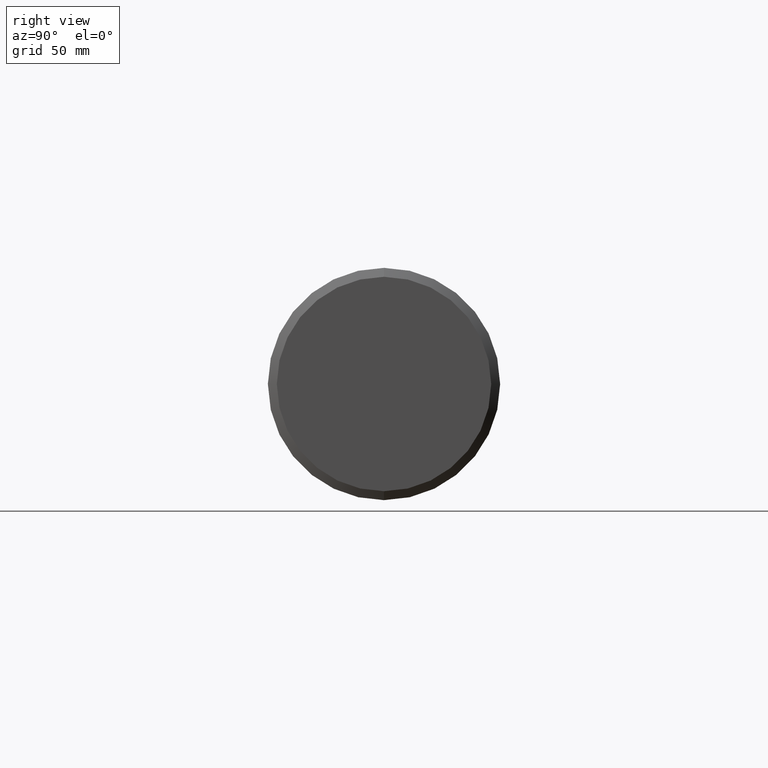
[diagram: clean part render]
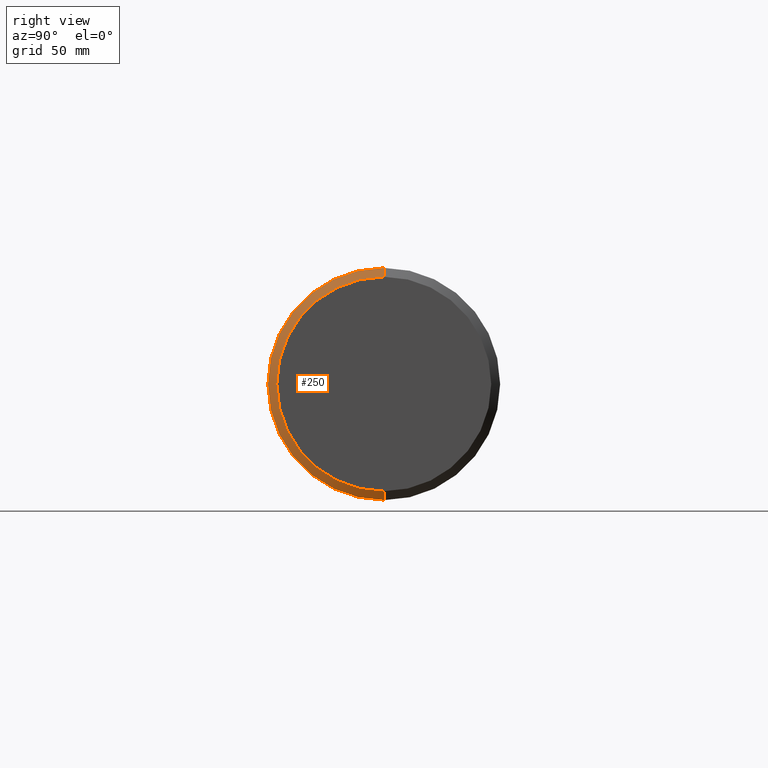
[diagram: same view with one face highlighted and labeled with its STEP entity id]
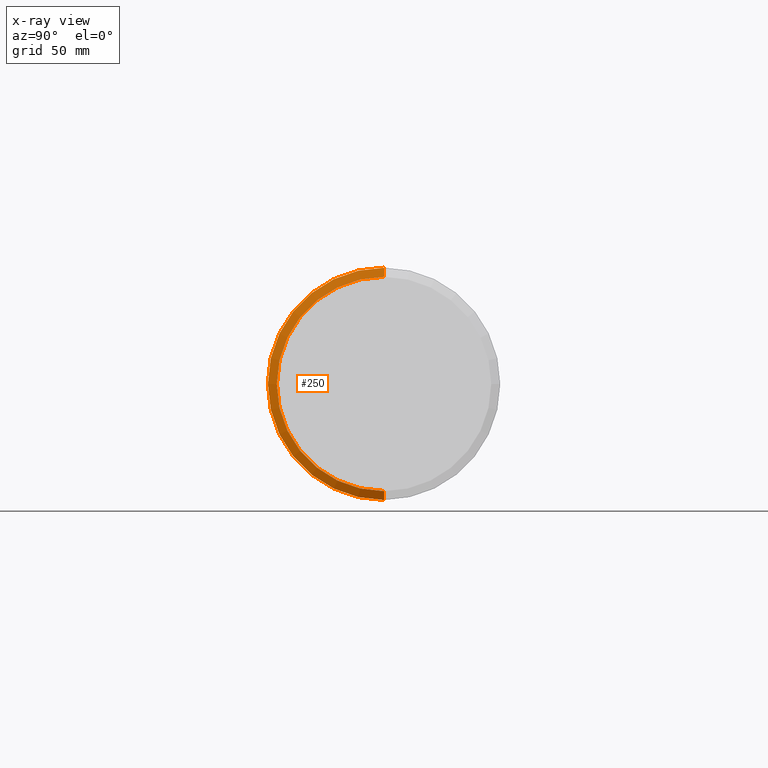
[diagram: x-ray of the same camera — body ghosted, the highlighted face saturated]
A machine part, right view. The second image highlights one B-rep face of the part: STEP entity #250.
The next image is the same camera in x-ray: the body ghosted, the highlighted face saturated — about 0% of this face is hidden behind the body in this view.
In plain terms, the highlighted conical surface has half-angle 60 deg.
Its self-contained STEP definition (entity closure, byte-faithful):
#235 = ORIENTED_EDGE ( 'NONE', *, *, #630, .F. ) ;
#240 = ORIENTED_EDGE ( 'NONE', *, *, #372, .T. ) ;
#250 = ADVANCED_FACE ( 'NONE', ( #1368 ), #1398, .T. ) ;
#282 = EDGE_CURVE ( 'NONE', #299, #328, #1567, .T. ) ;
#289 = ORIENTED_EDGE ( 'NONE', *, *, #282, .T. ) ;
#297 = VERTEX_POINT ( 'NONE', #1563 ) ;
#299 = VERTEX_POINT ( 'NONE', #1577 ) ;
#301 = EDGE_CURVE ( 'NONE', #299, #302, #1564, .T. ) ;
#302 = VERTEX_POINT ( 'NONE', #1634 ) ;
#328 = VERTEX_POINT ( 'NONE', #1558 ) ;
#372 = EDGE_CURVE ( 'NONE', #328, #297, #1787, .T. ) ;
#380 = ORIENTED_EDGE ( 'NONE', *, *, #301, .F. ) ;
#420 = EDGE_LOOP ( 'NONE', ( #380, #289, #240, #235 ) ) ;
#630 = EDGE_CURVE ( 'NONE', #302, #297, #2290, .T. ) ;
#1368 = FACE_OUTER_BOUND ( 'NONE', #420, .T. ) ;
#1398 = CONICAL_SURFACE ( 'NONE', #1409, 41.53589838486234200, 1.047197551196579600 ) ;
#1402 = DIRECTION ( 'NONE',  ( 0.0000000000000000000, 0.0000000000000000000, 1.000000000000000000 ) ) ;
#1405 = CARTESIAN_POINT ( 'NONE',  ( 253.1999999999999900, 0.0000000000000000000, 0.0000000000000000000 ) ) ;
#1409 = AXIS2_PLACEMENT_3D ( 'NONE', #1405, #1429, #1402 ) ;
#1429 = DIRECTION ( 'NONE',  ( -1.000000000000000000, -0.0000000000000000000, -0.0000000000000000000 ) ) ;
#1545 = DIRECTION ( 'NONE',  ( 0.0000000000000000000, 0.0000000000000000000, 1.000000000000000000 ) ) ;
#1546 = DIRECTION ( 'NONE',  ( -1.000000000000000000, -0.0000000000000000000, -0.0000000000000000000 ) ) ;
#1558 = CARTESIAN_POINT ( 'NONE',  ( 253.1999999999999900, 0.0000000000000000000, 41.53589838486234200 ) ) ;
#1563 = CARTESIAN_POINT ( 'NONE',  ( 251.1999999999999300, 0.0000000000000000000, 45.00000000000005700 ) ) ;
#1564 = LINE ( 'NONE', #1616, #1615 ) ;
#1567 = CIRCLE ( 'NONE', #1631, 41.53589838486234200 ) ;
#1577 = CARTESIAN_POINT ( 'NONE',  ( 253.1999999999999900, 5.298620549791504100E-015, -41.53589838486234200 ) ) ;
#1614 = DIRECTION ( 'NONE',  ( -0.5000000000000156500, 1.060540212046002400E-016, -0.8660254037844296000 ) ) ;
#1615 = VECTOR ( 'NONE', #1614, 1000.000000000000000 ) ;
#1616 = CARTESIAN_POINT ( 'NONE',  ( 253.1999999999999900, 5.086512507382304200E-015, -41.53589838486234200 ) ) ;
#1630 = CARTESIAN_POINT ( 'NONE',  ( 253.1999999999999900, 0.0000000000000000000, 0.0000000000000000000 ) ) ;
#1631 = AXIS2_PLACEMENT_3D ( 'NONE', #1630, #1546, #1545 ) ;
#1634 = CARTESIAN_POINT ( 'NONE',  ( 251.1999999999999300, 5.510728592200705600E-015, -45.00000000000006400 ) ) ;
#1756 = CARTESIAN_POINT ( 'NONE',  ( 253.1999999999999900, 0.0000000000000000000, 41.53589838486234200 ) ) ;
#1787 = LINE ( 'NONE', #1756, #1819 ) ;
#1819 = VECTOR ( 'NONE', #1873, 1000.000000000000000 ) ;
#1873 = DIRECTION ( 'NONE',  ( -0.5000000000000156500, 0.0000000000000000000, 0.8660254037844296000 ) ) ;
#2287 = DIRECTION ( 'NONE',  ( -1.000000000000000000, -0.0000000000000000000, -0.0000000000000000000 ) ) ;
#2288 = CARTESIAN_POINT ( 'NONE',  ( 251.1999999999999300, 0.0000000000000000000, 0.0000000000000000000 ) ) ;
#2289 = AXIS2_PLACEMENT_3D ( 'NONE', #2288, #2287, #2296 ) ;
#2290 = CIRCLE ( 'NONE', #2289, 45.00000000000005700 ) ;
#2296 = DIRECTION ( 'NONE',  ( 0.0000000000000000000, 0.0000000000000000000, 1.000000000000000000 ) ) ;